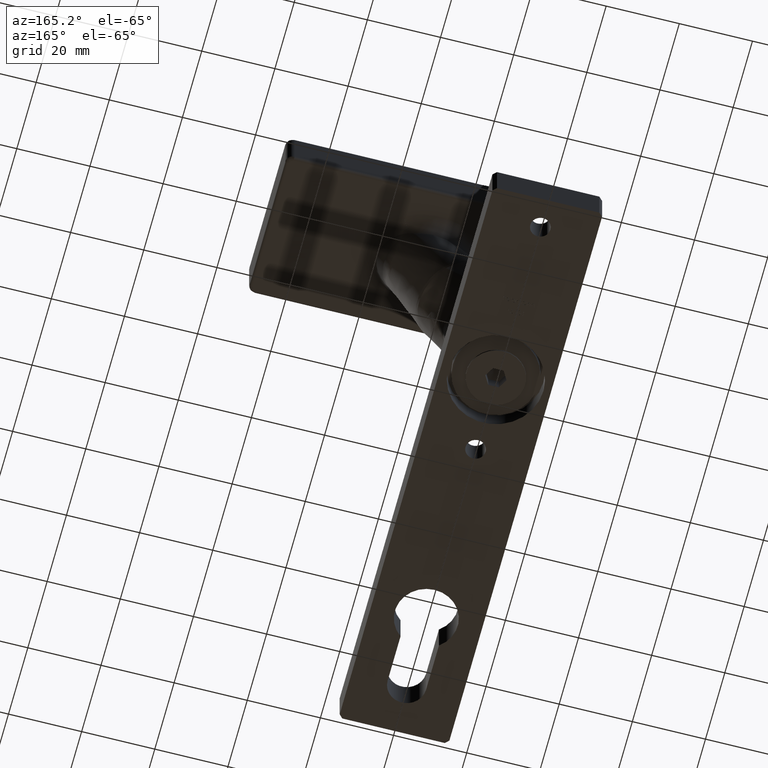
[diagram: clean part render]
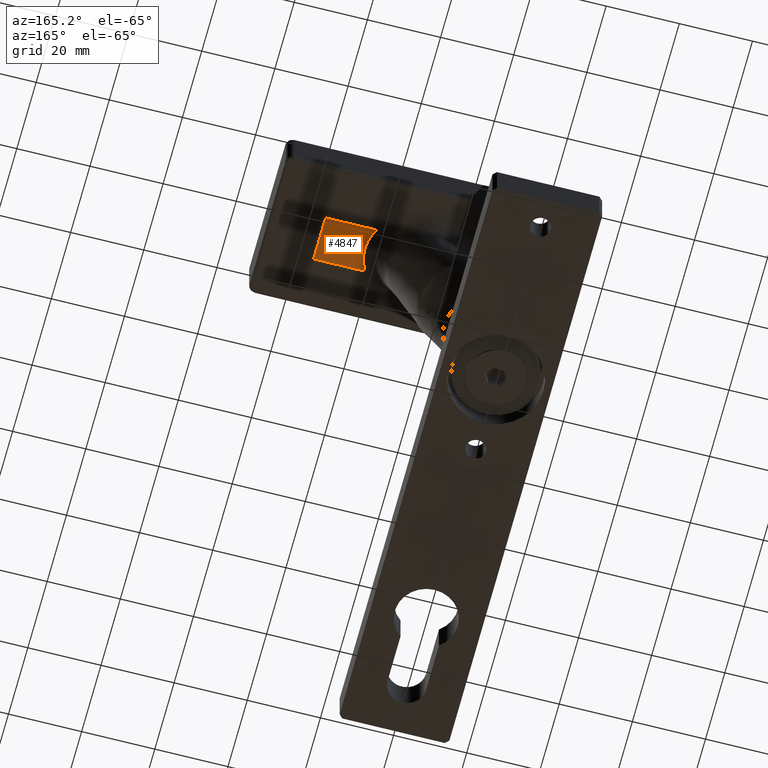
[diagram: same view with one face highlighted and labeled with its STEP entity id]
A machine part, auxiliary view. The second image highlights one B-rep face of the part: STEP entity #4847.
In plain terms, the highlighted planar face has unit normal (0, 0, -1).
Its self-contained STEP definition (entity closure, byte-faithful):
#1976 = EDGE_CURVE ( 'NONE', #3472, #7695, #11189, .T. ) ;
#2352 = CARTESIAN_POINT ( 'NONE',  ( 48.19933374328787323, -6.199333743287863463, 52.00000000000000711 ) ) ;
#2376 = CARTESIAN_POINT ( 'NONE',  ( 2.500000000000002220, 6.199333743287863463, 52.00000000000000711 ) ) ;
#2552 = ORIENTED_EDGE ( 'NONE', *, *, #5934, .T. ) ;
#2931 = EDGE_LOOP ( 'NONE', ( #8571, #2552, #3812, #4247 ) ) ;
#3124 = CARTESIAN_POINT ( 'NONE',  ( 0.000000000000000000, 0.000000000000000000, 52.00000000000000711 ) ) ;
#3242 = DIRECTION ( 'NONE',  ( -0.000000000000000000, -1.000000000000000000, -0.000000000000000000 ) ) ;
#3472 = VERTEX_POINT ( 'NONE', #2352 ) ;
#3812 = ORIENTED_EDGE ( 'NONE', *, *, #6051, .T. ) ;
#4048 = CARTESIAN_POINT ( 'NONE',  ( 36.47819967862418622, 2.219412891261871135, 52.00000000000002132 ) ) ;
#4247 = ORIENTED_EDGE ( 'NONE', *, *, #9046, .T. ) ;
#4668 = LINE ( 'NONE', #9454, #10757 ) ;
#4847 = ADVANCED_FACE ( 'NONE', ( #7765 ), #10473, .T. ) ;
#5072 = CARTESIAN_POINT ( 'NONE',  ( 36.47819967862418622, -2.219412891261874687, 52.00000000000002132 ) ) ;
#5235 = AXIS2_PLACEMENT_3D ( 'NONE', #3124, #8328, #10432 ) ;
#5272 = VECTOR ( 'NONE', #10675, 1000.000000000000000 ) ;
#5757 = CARTESIAN_POINT ( 'NONE',  ( 48.19933374328787323, 6.199333743287863463, 52.00000000000000711 ) ) ;
#5934 = EDGE_CURVE ( 'NONE', #7695, #12406, #11249, .T. ) ;
#6051 = EDGE_CURVE ( 'NONE', #12406, #13720, #11114, .T. ) ;
#6624 = DIRECTION ( 'NONE',  ( 1.000000000000000000, -0.000000000000000000, -0.000000000000000000 ) ) ;
#6774 = CARTESIAN_POINT ( 'NONE',  ( 34.19228513888116083, 6.199333743287863463, 52.00000000000000711 ) ) ;
#7422 = CARTESIAN_POINT ( 'NONE',  ( 62.50000000000001421, -6.199333743287859910, 52.00000000000000711 ) ) ;
#7695 = VERTEX_POINT ( 'NONE', #13299 ) ;
#7765 = FACE_OUTER_BOUND ( 'NONE', #2931, .T. ) ;
#8328 = DIRECTION ( 'NONE',  ( -0.000000000000000000, 0.000000000000000000, -1.000000000000000000 ) ) ;
#8571 = ORIENTED_EDGE ( 'NONE', *, *, #1976, .T. ) ;
#9046 = EDGE_CURVE ( 'NONE', #13720, #3472, #4668, .T. ) ;
#9454 = CARTESIAN_POINT ( 'NONE',  ( 48.19933374328787323, 20.50000000000000355, 52.00000000000000711 ) ) ;
#10432 = DIRECTION ( 'NONE',  ( -1.000000000000000000, 0.000000000000000000, 0.000000000000000000 ) ) ;
#10473 = PLANE ( 'NONE',  #5235 ) ;
#10675 = DIRECTION ( 'NONE',  ( -1.000000000000000000, -0.000000000000000000, -0.000000000000000000 ) ) ;
#10757 = VECTOR ( 'NONE', #3242, 1000.000000000000000 ) ;
#11114 = LINE ( 'NONE', #2376, #11449 ) ;
#11189 = LINE ( 'NONE', #7422, #5272 ) ;
#11249 =( BOUNDED_CURVE ( )  B_SPLINE_CURVE ( 3, ( #13548, #5072, #4048, #13362 ),
 .UNSPECIFIED., .F., .F. ) 
 B_SPLINE_CURVE_WITH_KNOTS ( ( 4, 4 ),
 ( 2.682862887230240467, 3.600322419949345765 ),
 .UNSPECIFIED. ) 
 CURVE ( )  GEOMETRIC_REPRESENTATION_ITEM ( )  RATIONAL_B_SPLINE_CURVE ( ( 1.000000000000000000, 0.9310771282044104646, 0.9310771282044104646, 1.000000000000000000 ) ) 
 REPRESENTATION_ITEM ( '' )  );
#11449 = VECTOR ( 'NONE', #6624, 1000.000000000000000 ) ;
#12406 = VERTEX_POINT ( 'NONE', #6774 ) ;
#13299 = CARTESIAN_POINT ( 'NONE',  ( 34.19228513888116083, -6.199333743287859910, 52.00000000000000711 ) ) ;
#13362 = CARTESIAN_POINT ( 'NONE',  ( 34.19228513888116083, 6.199333743287863463, 52.00000000000000711 ) ) ;
#13548 = CARTESIAN_POINT ( 'NONE',  ( 34.19228513888116083, -6.199333743287859910, 52.00000000000000711 ) ) ;
#13720 = VERTEX_POINT ( 'NONE', #5757 ) ;